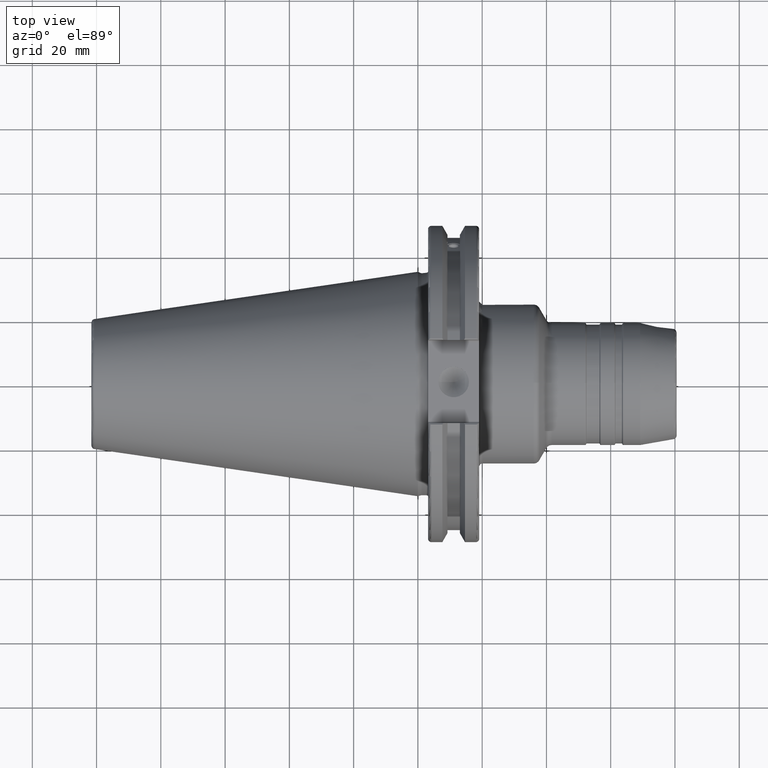
[diagram: clean part render]
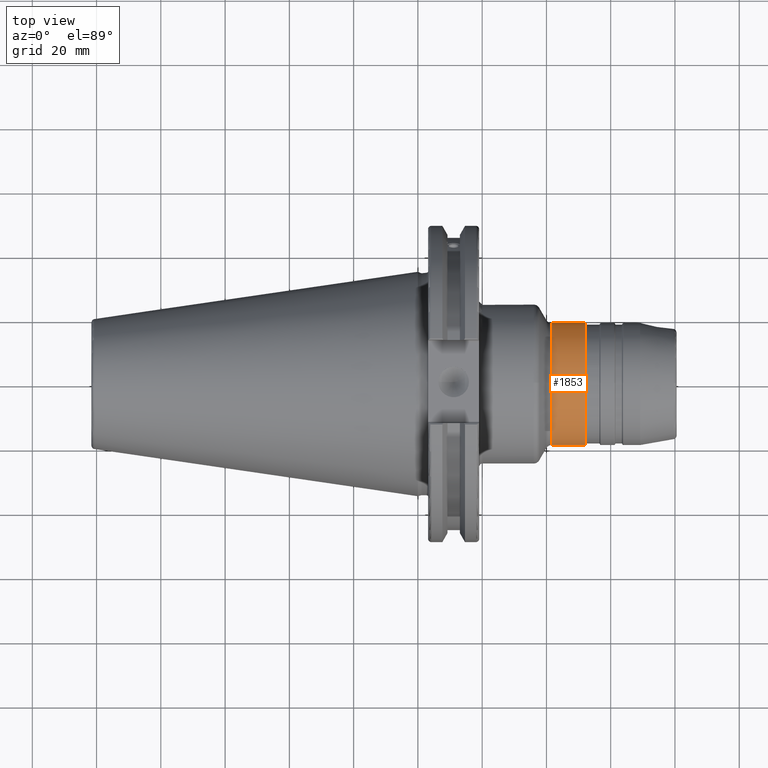
[diagram: same view with one face highlighted and labeled with its STEP entity id]
A machine part, top view. The second image highlights one B-rep face of the part: STEP entity #1853.
In plain terms, the highlighted cylindrical surface (bore or boss wall) has radius 19 mm, axis along (1, 0, 0).
Its self-contained STEP definition (entity closure, byte-faithful):
#187=FACE_OUTER_BOUND('',#297,.T.);
#297=EDGE_LOOP('',(#1343,#1344,#1345,#1346,#1347,#1348));
#415=LINE('',#2989,#519);
#519=VECTOR('',#2359,19.);
#657=CIRCLE('',#2031,19.);
#658=CIRCLE('',#2032,19.);
#659=CIRCLE('',#2034,19.);
#660=CIRCLE('',#2035,19.);
#782=VERTEX_POINT('',#2982);
#783=VERTEX_POINT('',#2984);
#784=VERTEX_POINT('',#2988);
#785=VERTEX_POINT('',#2990);
#996=EDGE_CURVE('',#782,#783,#657,.T.);
#997=EDGE_CURVE('',#783,#782,#658,.T.);
#998=EDGE_CURVE('',#783,#784,#415,.T.);
#999=EDGE_CURVE('',#785,#784,#659,.T.);
#1000=EDGE_CURVE('',#784,#785,#660,.T.);
#1343=ORIENTED_EDGE('',*,*,#997,.F.);
#1344=ORIENTED_EDGE('',*,*,#998,.T.);
#1345=ORIENTED_EDGE('',*,*,#999,.F.);
#1346=ORIENTED_EDGE('',*,*,#1000,.F.);
#1347=ORIENTED_EDGE('',*,*,#998,.F.);
#1348=ORIENTED_EDGE('',*,*,#996,.F.);
#1806=CYLINDRICAL_SURFACE('',#2033,19.);
#1853=ADVANCED_FACE('',(#187),#1806,.T.);
#2031=AXIS2_PLACEMENT_3D('',#2985,#2353,#2354);
#2032=AXIS2_PLACEMENT_3D('',#2986,#2355,#2356);
#2033=AXIS2_PLACEMENT_3D('',#2987,#2357,#2358);
#2034=AXIS2_PLACEMENT_3D('',#2991,#2360,#2361);
#2035=AXIS2_PLACEMENT_3D('',#2992,#2362,#2363);
#2353=DIRECTION('center_axis',(1.,0.,0.));
#2354=DIRECTION('ref_axis',(0.,-1.,1.83697019872103E-16));
#2355=DIRECTION('center_axis',(1.,0.,0.));
#2356=DIRECTION('ref_axis',(0.,-1.,1.83697019872103E-16));
#2357=DIRECTION('center_axis',(1.,0.,0.));
#2358=DIRECTION('ref_axis',(0.,1.,0.));
#2359=DIRECTION('',(-1.,0.,0.));
#2360=DIRECTION('center_axis',(-1.,0.,0.));
#2361=DIRECTION('ref_axis',(0.,-1.,1.83697019872103E-16));
#2362=DIRECTION('center_axis',(-1.,0.,0.));
#2363=DIRECTION('ref_axis',(0.,-1.,1.83697019872103E-16));
#2982=CARTESIAN_POINT('',(51.9803847577293,-2.32682891837997E-15,19.));
#2984=CARTESIAN_POINT('',(51.9803847577293,-19.,-2.32682891837997E-15));
#2985=CARTESIAN_POINT('Origin',(51.9803847577293,0.,0.));
#2986=CARTESIAN_POINT('Origin',(51.9803847577293,0.,0.));
#2987=CARTESIAN_POINT('Origin',(46.3556624327026,0.,0.));
#2988=CARTESIAN_POINT('',(41.6547005383793,-19.,-2.32682891837997E-15));
#2989=CARTESIAN_POINT('',(46.3556624327026,-19.,-2.32682891837997E-15));
#2990=CARTESIAN_POINT('',(41.6547005383793,-2.32682891837997E-15,19.));
#2991=CARTESIAN_POINT('Origin',(41.6547005383793,0.,0.));
#2992=CARTESIAN_POINT('Origin',(41.6547005383793,0.,0.));